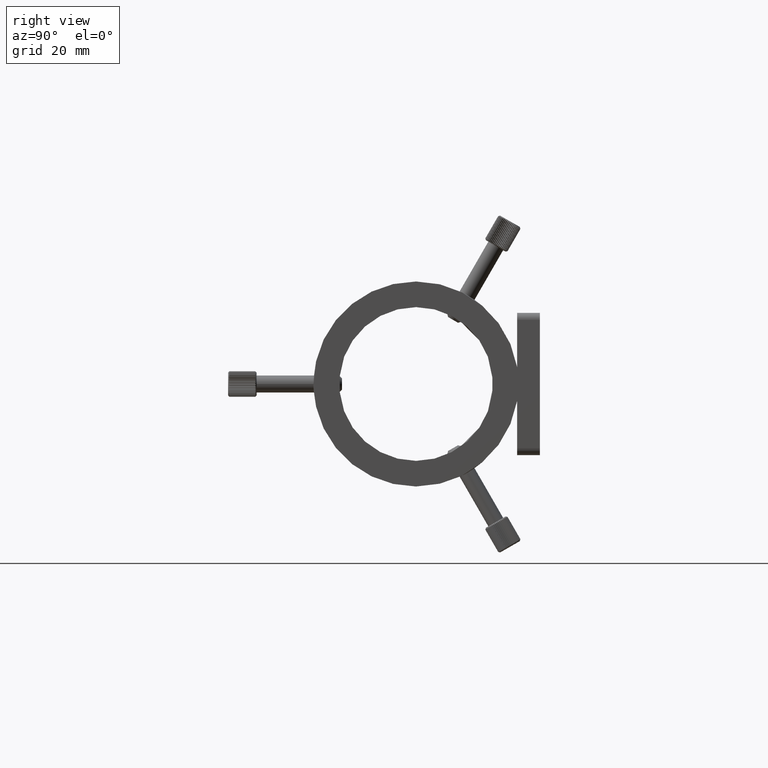
[diagram: clean part render]
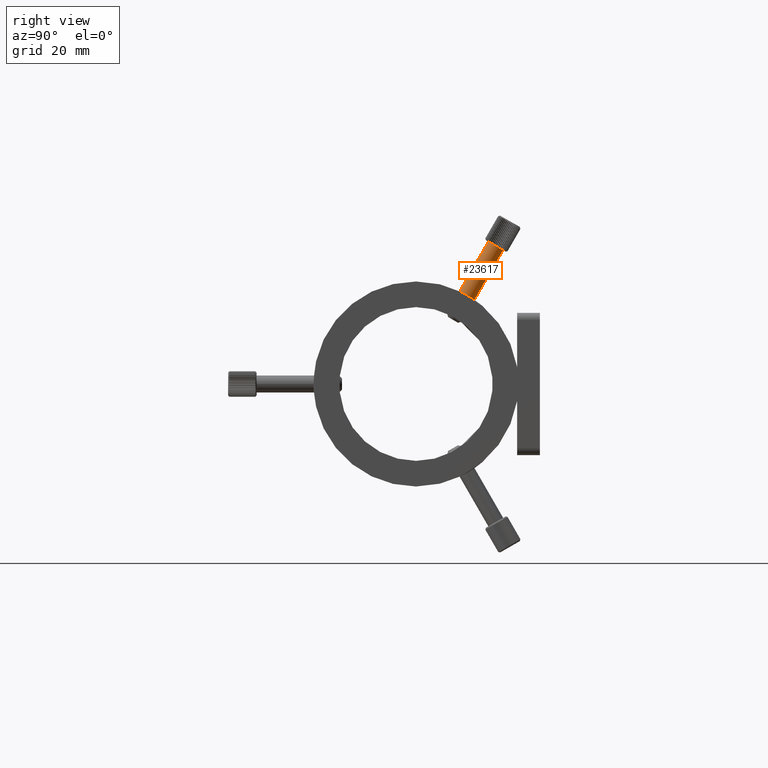
[diagram: same view with one face highlighted and labeled with its STEP entity id]
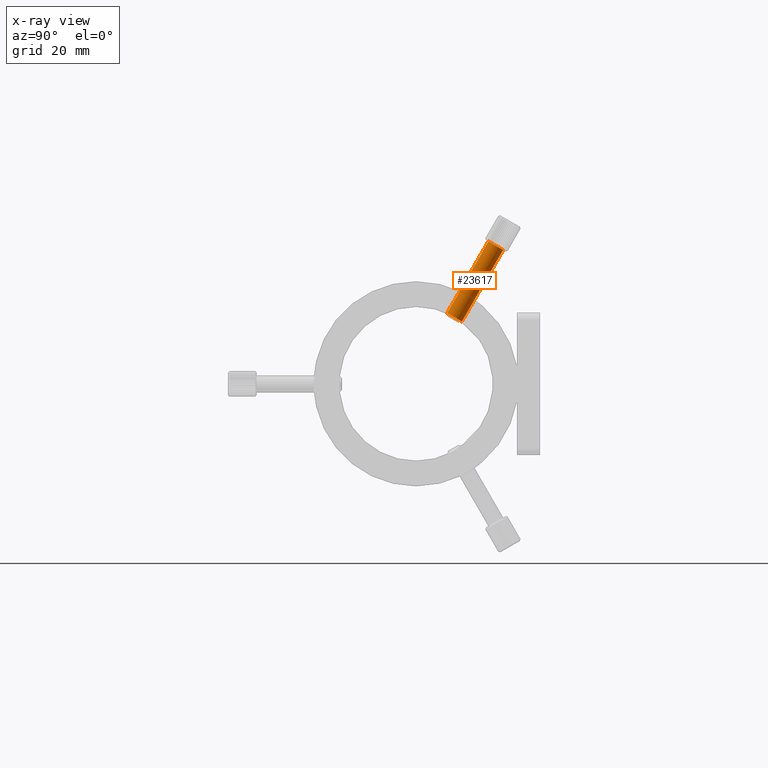
[diagram: x-ray of the same camera — body ghosted, the highlighted face saturated]
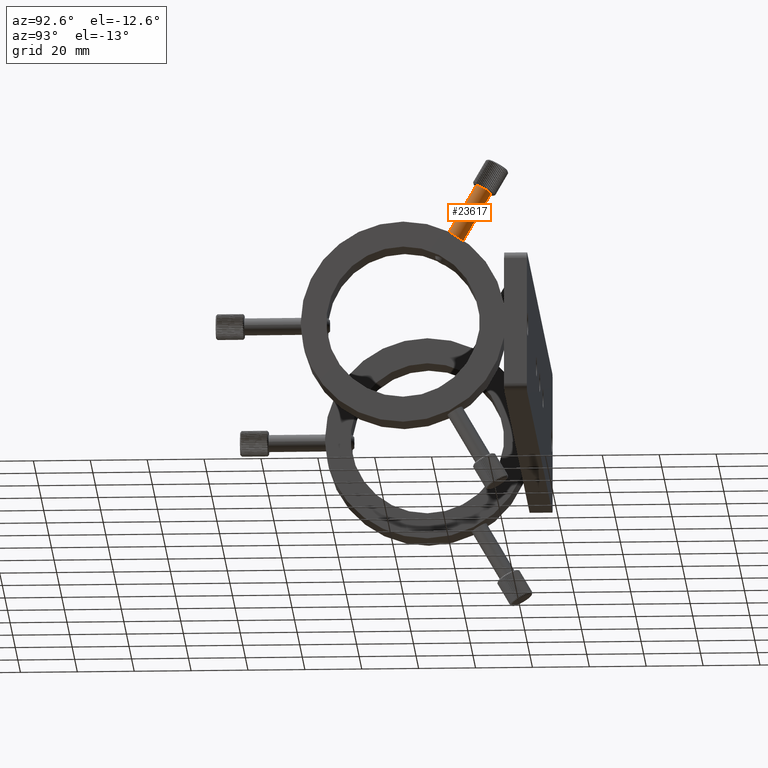
[diagram: same view with one face highlighted and labeled with its STEP entity id]
A machine part, right view. The second image highlights one B-rep face of the part: STEP entity #23617.
The next image is the same camera in x-ray: the body ghosted, the highlighted face saturated — about 0% of this face is hidden behind the body in this view.
A second angle (auxiliary view) of the same face is appended — the face is thin or edge-on in the first view.
In plain terms, the highlighted cylindrical surface (edge-blend (fillet) strip) has radius 3 mm, axis along (-0, 0.5, 0.866).
Its self-contained STEP definition (entity closure, byte-faithful):
#1090 = FACE_OUTER_BOUND ( 'NONE', #24162, .T. ) ;
#1278 = CARTESIAN_POINT ( 'NONE',  ( 90.36693914623067800, -39.41295791704519000, 23.38268590217997600 ) ) ;
#1812 = VERTEX_POINT ( 'NONE', #12452 ) ;
#2305 = CYLINDRICAL_SURFACE ( 'NONE', #16102, 3.000000000000003100 ) ;
#3078 = VERTEX_POINT ( 'NONE', #12432 ) ;
#3667 = EDGE_CURVE ( 'NONE', #9143, #1812, #10982, .T. ) ;
#3852 = AXIS2_PLACEMENT_3D ( 'NONE', #1278, #21647, #21536 ) ;
#4138 = CARTESIAN_POINT ( 'NONE',  ( 90.36693914623069200, -22.31488170569204500, 46.99742261192874800 ) ) ;
#4139 = LINE ( 'NONE', #9248, #14092 ) ;
#4686 = AXIS2_PLACEMENT_3D ( 'NONE', #29821, #32387, #17141 ) ;
#5127 = EDGE_CURVE ( 'NONE', #3078, #9143, #4139, .T. ) ;
#5162 = CARTESIAN_POINT ( 'NONE',  ( 90.36693914623069200, -42.51103412839850600, 24.01666049839551700 ) ) ;
#5842 = EDGE_CURVE ( 'NONE', #7422, #1812, #30321, .T. ) ;
#6030 = CARTESIAN_POINT ( 'NONE',  ( 90.36693914623069200, -39.91295791704517600, 22.51666049839553500 ) ) ;
#7384 = DIRECTION ( 'NONE',  ( -5.701003438093005900E-017, 0.4999999999999944500, 0.8660254037844418200 ) ) ;
#7422 = VERTEX_POINT ( 'NONE', #20832 ) ;
#9143 = VERTEX_POINT ( 'NONE', #4138 ) ;
#9248 = CARTESIAN_POINT ( 'NONE',  ( 90.36693914623069200, -37.31488170569184600, 21.01666049839554900 ) ) ;
#9864 = ORIENTED_EDGE ( 'NONE', *, *, #9949, .T. ) ;
#9949 = EDGE_CURVE ( 'NONE', #7422, #3078, #22164, .T. ) ;
#10982 = CIRCLE ( 'NONE', #4686, 2.999999999999997800 ) ;
#12432 = CARTESIAN_POINT ( 'NONE',  ( 90.36693914623069200, -36.81488170569185300, 21.88268590217999000 ) ) ;
#12452 = CARTESIAN_POINT ( 'NONE',  ( 90.36693914623069200, -27.51103412839869800, 49.99742261192871200 ) ) ;
#14092 = VECTOR ( 'NONE', #27662, 1000.000000000000100 ) ;
#15185 = ORIENTED_EDGE ( 'NONE', *, *, #3667, .T. ) ;
#16102 = AXIS2_PLACEMENT_3D ( 'NONE', #6030, #23796, #31237 ) ;
#16427 = VECTOR ( 'NONE', #7384, 1000.000000000000100 ) ;
#17141 = DIRECTION ( 'NONE',  ( 0.0000000000000000000, -0.8660254037844422600, 0.4999999999999938400 ) ) ;
#20832 = CARTESIAN_POINT ( 'NONE',  ( 90.36693914623069200, -42.01103412839850600, 24.88268590217995800 ) ) ;
#21536 = DIRECTION ( 'NONE',  ( 4.625929269271480600E-015, -0.8660254037844419300, 0.4999999999999941700 ) ) ;
#21647 = DIRECTION ( 'NONE',  ( -5.701003438093007200E-017, 0.4999999999999945000, 0.8660254037844419300 ) ) ;
#22164 = CIRCLE ( 'NONE', #3852, 3.000000000000003100 ) ;
#23617 = ADVANCED_FACE ( 'NONE', ( #1090 ), #2305, .T. ) ;
#23796 = DIRECTION ( 'NONE',  ( -5.701003438093007200E-017, 0.4999999999999945000, 0.8660254037844419300 ) ) ;
#24162 = EDGE_LOOP ( 'NONE', ( #24863, #9864, #26258, #15185 ) ) ;
#24863 = ORIENTED_EDGE ( 'NONE', *, *, #5842, .F. ) ;
#26258 = ORIENTED_EDGE ( 'NONE', *, *, #5127, .T. ) ;
#27662 = DIRECTION ( 'NONE',  ( -5.701003438093005900E-017, 0.4999999999999944500, 0.8660254037844418200 ) ) ;
#29821 = CARTESIAN_POINT ( 'NONE',  ( 90.36693914623064900, -24.91295791704537500, 48.49742261192873400 ) ) ;
#30321 = LINE ( 'NONE', #5162, #16427 ) ;
#31237 = DIRECTION ( 'NONE',  ( 0.0000000000000000000, 0.8660254037844419300, -0.4999999999999941700 ) ) ;
#32387 = DIRECTION ( 'NONE',  ( 5.701003438093007200E-017, -0.4999999999999945000, -0.8660254037844419300 ) ) ;